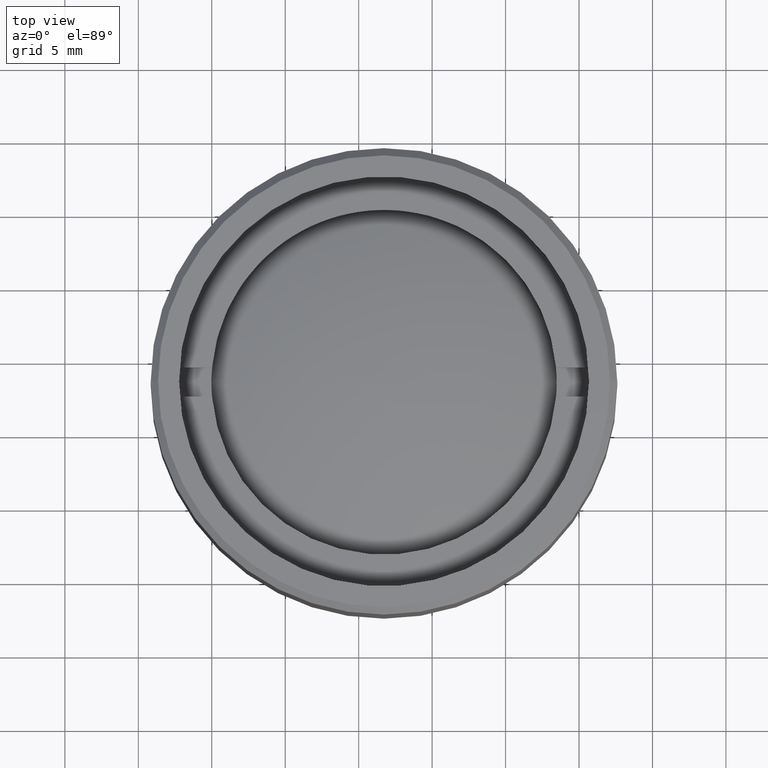
[diagram: clean part render]
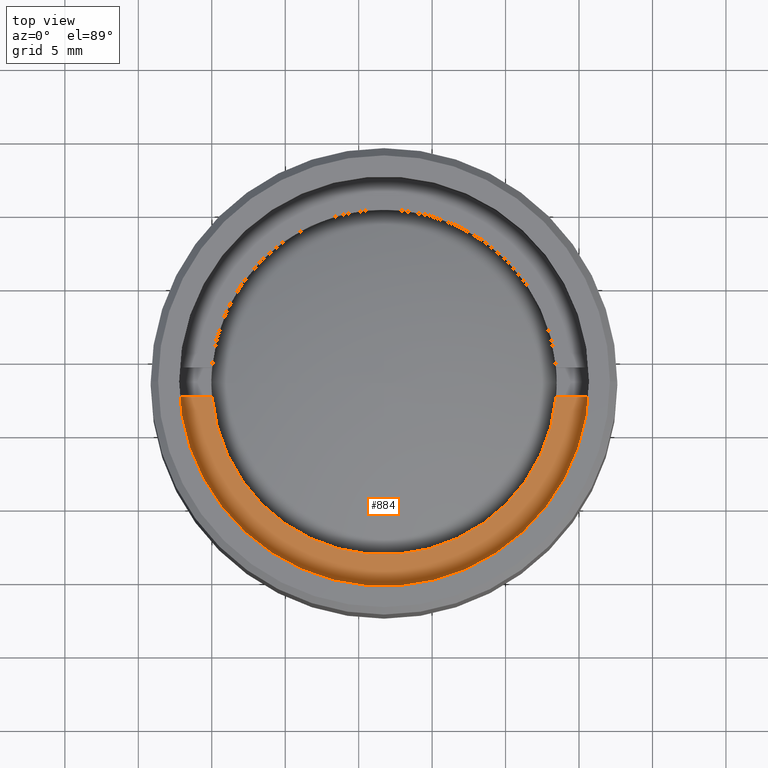
[diagram: same view with one face highlighted and labeled with its STEP entity id]
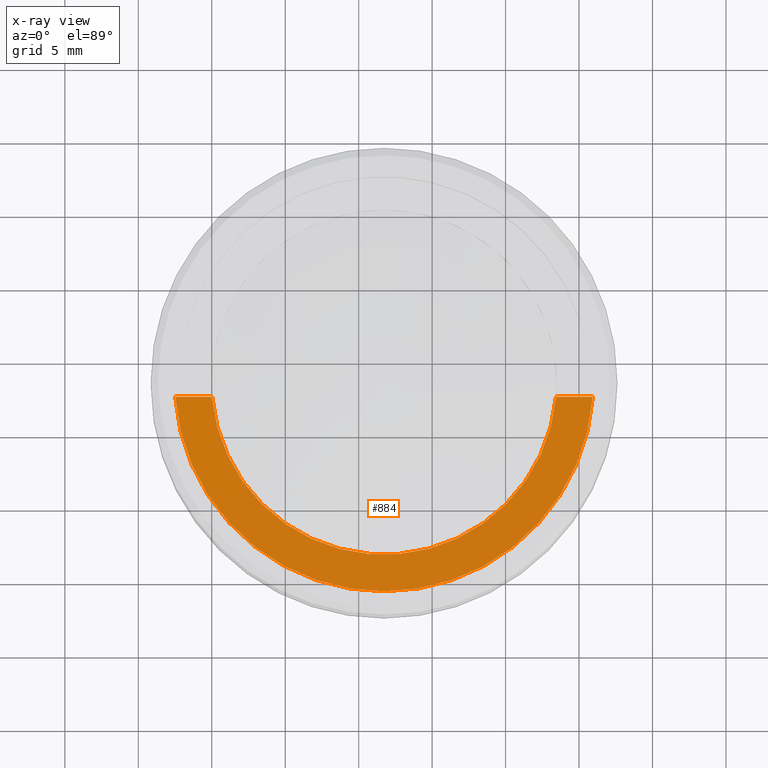
[diagram: x-ray of the same camera — body ghosted, the highlighted face saturated]
A machine part, top view. The second image highlights one B-rep face of the part: STEP entity #884.
The next image is the same camera in x-ray: the body ghosted, the highlighted face saturated — about 0% of this face is hidden behind the body in this view.
In plain terms, the highlighted planar face has unit normal (0, 0, 1).
Its self-contained STEP definition (entity closure, byte-faithful):
#15 = EDGE_CURVE ( 'NONE', #50, #1448, #191, .T. ) ;
#17 = FACE_OUTER_BOUND ( 'NONE', #651, .T. ) ;
#21 = EDGE_CURVE ( 'NONE', #359, #1448, #1540, .T. ) ;
#50 = VERTEX_POINT ( 'NONE', #520 ) ;
#59 = EDGE_CURVE ( 'NONE', #359, #116, #951, .T. ) ;
#105 = VECTOR ( 'NONE', #870, 1000.000000000000000 ) ;
#116 = VERTEX_POINT ( 'NONE', #176 ) ;
#128 = DIRECTION ( 'NONE',  ( 0.000000000000000000, 0.000000000000000000, 1.000000000000000000 ) ) ;
#152 = CARTESIAN_POINT ( 'NONE',  ( -30.62185530834360492, -1.000000000000000000, 2.500000000000000000 ) ) ;
#176 = CARTESIAN_POINT ( 'NONE',  ( -11.70736947396809668, -1.000000000000000000, 2.500000000000000000 ) ) ;
#191 = LINE ( 'NONE', #723, #105 ) ;
#208 = CARTESIAN_POINT ( 'NONE',  ( 0.000000000000000000, 0.000000000000000000, 2.500000000000000000 ) ) ;
#261 = EDGE_CURVE ( 'NONE', #116, #50, #470, .T. ) ;
#359 = VERTEX_POINT ( 'NONE', #970 ) ;
#470 = CIRCLE ( 'NONE', #1456, 11.75000000000000178 ) ;
#520 = CARTESIAN_POINT ( 'NONE',  ( 11.70736947396809668, -1.000000000000000000, 2.500000000000000000 ) ) ;
#548 = CARTESIAN_POINT ( 'NONE',  ( 0.000000000000000000, 0.000000000000000000, 2.500000000000000000 ) ) ;
#596 = AXIS2_PLACEMENT_3D ( 'NONE', #1328, #128, #932 ) ;
#651 = EDGE_LOOP ( 'NONE', ( #657, #898, #1353, #1497 ) ) ;
#654 = CARTESIAN_POINT ( 'NONE',  ( 14.21486897582949993, -1.000000000000000000, 2.500000000000000000 ) ) ;
#657 = ORIENTED_EDGE ( 'NONE', *, *, #59, .F. ) ;
#659 = AXIS2_PLACEMENT_3D ( 'NONE', #208, #1585, #811 ) ;
#723 = CARTESIAN_POINT ( 'NONE',  ( -30.62185530834360492, -1.000000000000000000, 2.500000000000000000 ) ) ;
#782 = DIRECTION ( 'NONE',  ( 1.000000000000000000, 0.000000000000000000, 0.000000000000000000 ) ) ;
#811 = DIRECTION ( 'NONE',  ( 1.000000000000000000, 0.000000000000000000, 0.000000000000000000 ) ) ;
#870 = DIRECTION ( 'NONE',  ( 1.000000000000000000, 0.000000000000000000, 0.000000000000000000 ) ) ;
#884 = ADVANCED_FACE ( 'NONE', ( #17 ), #1580, .T. ) ;
#898 = ORIENTED_EDGE ( 'NONE', *, *, #21, .T. ) ;
#932 = DIRECTION ( 'NONE',  ( 1.000000000000000000, 0.000000000000000000, -0.000000000000000000 ) ) ;
#945 = VECTOR ( 'NONE', #782, 1000.000000000000000 ) ;
#951 = LINE ( 'NONE', #152, #945 ) ;
#970 = CARTESIAN_POINT ( 'NONE',  ( -14.21486897582949993, -1.000000000000000000, 2.500000000000000000 ) ) ;
#1328 = CARTESIAN_POINT ( 'NONE',  ( 0.000000000000000000, 0.000000000000000000, 2.500000000000000000 ) ) ;
#1353 = ORIENTED_EDGE ( 'NONE', *, *, #15, .F. ) ;
#1448 = VERTEX_POINT ( 'NONE', #654 ) ;
#1456 = AXIS2_PLACEMENT_3D ( 'NONE', #548, #1498, #1577 ) ;
#1497 = ORIENTED_EDGE ( 'NONE', *, *, #261, .F. ) ;
#1498 = DIRECTION ( 'NONE',  ( 0.000000000000000000, 0.000000000000000000, 1.000000000000000000 ) ) ;
#1540 = CIRCLE ( 'NONE', #659, 14.25000000000000000 ) ;
#1577 = DIRECTION ( 'NONE',  ( 1.000000000000000000, 0.000000000000000000, 0.000000000000000000 ) ) ;
#1580 = PLANE ( 'NONE',  #596 ) ;
#1585 = DIRECTION ( 'NONE',  ( 0.000000000000000000, 0.000000000000000000, 1.000000000000000000 ) ) ;